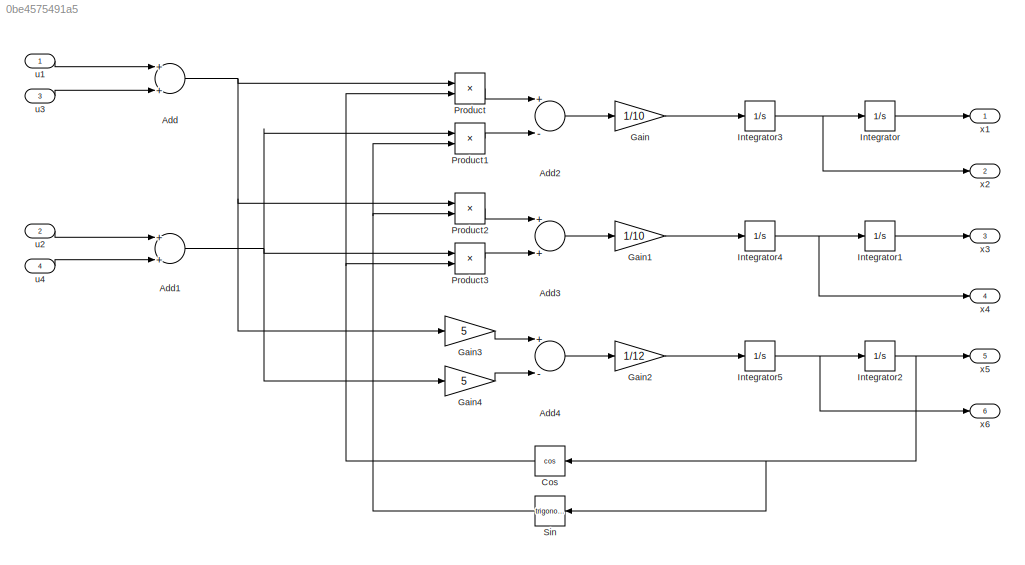
MODEL slx_0be4575491a5
KIND model
CONFIG AbsTol = auto
CONFIG EnableMultiTasking = off
CONFIG FixedStep = 0.01
CONFIG MaxStep = auto
CONFIG MinStep = auto
CONFIG RelTol = 1e-3
CONFIG SampleTimeConstraint = Unconstrained
CONFIG Solver = FixedStepAuto
CONFIG SolverName = FixedStepAuto
CONFIG StartTime = 0.0
CONFIG StopTime = 10.0
BLOCK [Sum] Add
  InputSameDT = off
  OutDataTypeStr = Inherit: Inherit via internal rule
  Ports = [2, 1]
  SaturateOnIntegerOverflow = off
BLOCK [Sum] Add1
  InputSameDT = off
  OutDataTypeStr = Inherit: Inherit via internal rule
  Ports = [2, 1]
  SaturateOnIntegerOverflow = off
BLOCK [Sum] Add2
  InputSameDT = off
  Inputs = +-
  OutDataTypeStr = Inherit: Inherit via internal rule
  Ports = [2, 1]
  SaturateOnIntegerOverflow = off
BLOCK [Sum] Add3
  InputSameDT = off
  OutDataTypeStr = Inherit: Inherit via internal rule
  Ports = [2, 1]
  SaturateOnIntegerOverflow = off
BLOCK [Sum] Add4
  InputSameDT = off
  Inputs = +-
  OutDataTypeStr = Inherit: Inherit via internal rule
  Ports = [2, 1]
  SaturateOnIntegerOverflow = off
BLOCK [Trigonometry] Cos
  Operator = cos
  Ports = [1, 1]
BLOCK [Gain] Gain
  Gain = 1/10
  OutDataTypeStr = Inherit: Inherit via internal rule
  ParamDataTypeStr = Inherit: Inherit via internal rule
  SaturateOnIntegerOverflow = off
BLOCK [Gain] Gain1
  Gain = 1/10
  OutDataTypeStr = Inherit: Inherit via internal rule
  ParamDataTypeStr = Inherit: Inherit via internal rule
  SaturateOnIntegerOverflow = off
BLOCK [Gain] Gain2
  Gain = 1/12
  OutDataTypeStr = Inherit: Inherit via internal rule
  ParamDataTypeStr = Inherit: Inherit via internal rule
  SaturateOnIntegerOverflow = off
BLOCK [Gain] Gain3
  Gain = 5
  OutDataTypeStr = Inherit: Inherit via internal rule
  ParamDataTypeStr = Inherit: Inherit via internal rule
  SaturateOnIntegerOverflow = off
BLOCK [Gain] Gain4
  Gain = 5
  OutDataTypeStr = Inherit: Inherit via internal rule
  ParamDataTypeStr = Inherit: Inherit via internal rule
  SaturateOnIntegerOverflow = off
BLOCK [Integrator] Integrator
  Ports = [1, 1]
BLOCK [Integrator] Integrator1
  Ports = [1, 1]
BLOCK [Integrator] Integrator2
  Ports = [1, 1]
BLOCK [Integrator] Integrator3
  Ports = [1, 1]
BLOCK [Integrator] Integrator4
  Ports = [1, 1]
BLOCK [Integrator] Integrator5
  Ports = [1, 1]
BLOCK [Product] Product
  InputSameDT = off
  OutDataTypeStr = Inherit: Inherit via internal rule
  Ports = [2, 1]
  RndMeth = Floor
  SaturateOnIntegerOverflow = off
BLOCK [Product] Product1
  InputSameDT = off
  OutDataTypeStr = Inherit: Inherit via internal rule
  Ports = [2, 1]
  RndMeth = Floor
  SaturateOnIntegerOverflow = off
BLOCK [Product] Product2
  InputSameDT = off
  OutDataTypeStr = Inherit: Inherit via internal rule
  Ports = [2, 1]
  RndMeth = Floor
  SaturateOnIntegerOverflow = off
BLOCK [Product] Product3
  InputSameDT = off
  OutDataTypeStr = Inherit: Inherit via internal rule
  Ports = [2, 1]
  RndMeth = Floor
  SaturateOnIntegerOverflow = off
BLOCK [Trigonometry] Sin
  Ports = [1, 1]
BLOCK [Inport] u1
  IconDisplay = Port number
  Interpolate = off
BLOCK [Inport] u2
  IconDisplay = Port number
  Port = 2
BLOCK [Inport] u3
  IconDisplay = Port number
  Port = 3
BLOCK [Inport] u4
  IconDisplay = Port number
  Port = 4
BLOCK [Outport] x1
  IconDisplay = Port number
BLOCK [Outport] x2
  IconDisplay = Port number
  Port = 2
BLOCK [Outport] x3
  IconDisplay = Port number
  Port = 3
BLOCK [Outport] x4
  IconDisplay = Port number
  Port = 4
BLOCK [Outport] x5
  IconDisplay = Port number
  Port = 5
BLOCK [Outport] x6
  IconDisplay = Port number
  Port = 6
NET Add1:1 -> Gain4:1, Product1:1, Product3:1
LINE Add2:1 -> Gain:1
LINE Add3:1 -> Gain1:1
LINE Add4:1 -> Gain2:1
NET Add:1 -> Gain3:1, Product2:1, Product:1
NET Cos:1 -> Product3:2, Product:2
LINE Gain1:1 -> Integrator4:1
LINE Gain2:1 -> Integrator5:1
LINE Gain3:1 -> Add4:1
LINE Gain4:1 -> Add4:2
LINE Gain:1 -> Integrator3:1
LINE Integrator1:1 -> x3:1
NET Integrator2:1 -> Cos:1, Sin:1, x5:1
NET Integrator3:1 -> Integrator:1, x2:1
NET Integrator4:1 -> Integrator1:1, x4:1
NET Integrator5:1 -> Integrator2:1, x6:1
LINE Integrator:1 -> x1:1
LINE Product1:1 -> Add2:2
LINE Product2:1 -> Add3:1
LINE Product3:1 -> Add3:2
LINE Product:1 -> Add2:1
NET Sin:1 -> Product1:2, Product2:2
LINE u1:1 -> Add:1
LINE u2:1 -> Add1:1
LINE u3:1 -> Add:2
LINE u4:1 -> Add1:2
note: NET lines group one-source signal fan-out (src -> all destinations, sorted); 1:1 wires keep LINE
